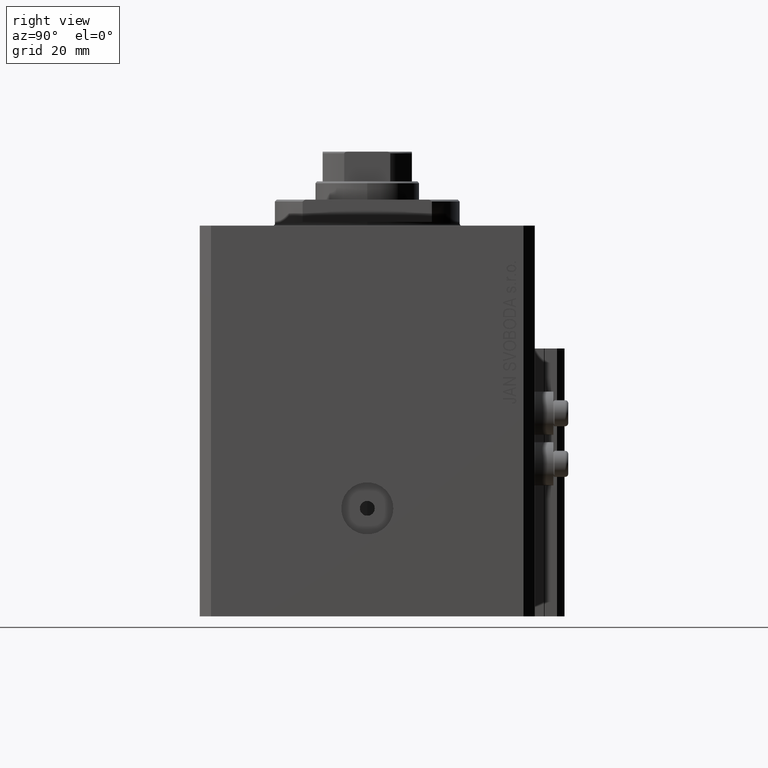
[diagram: clean part render]
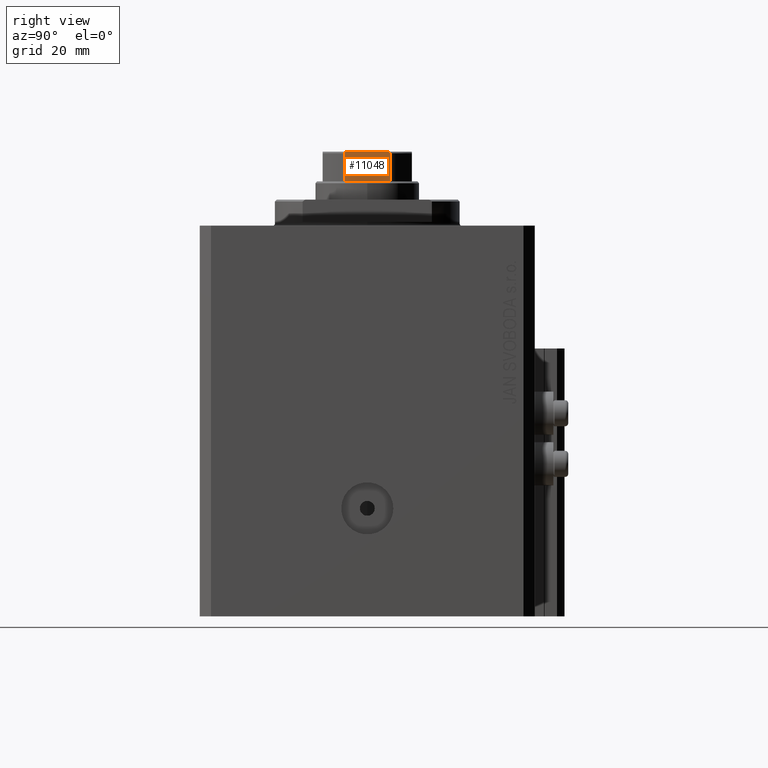
[diagram: same view with one face highlighted and labeled with its STEP entity id]
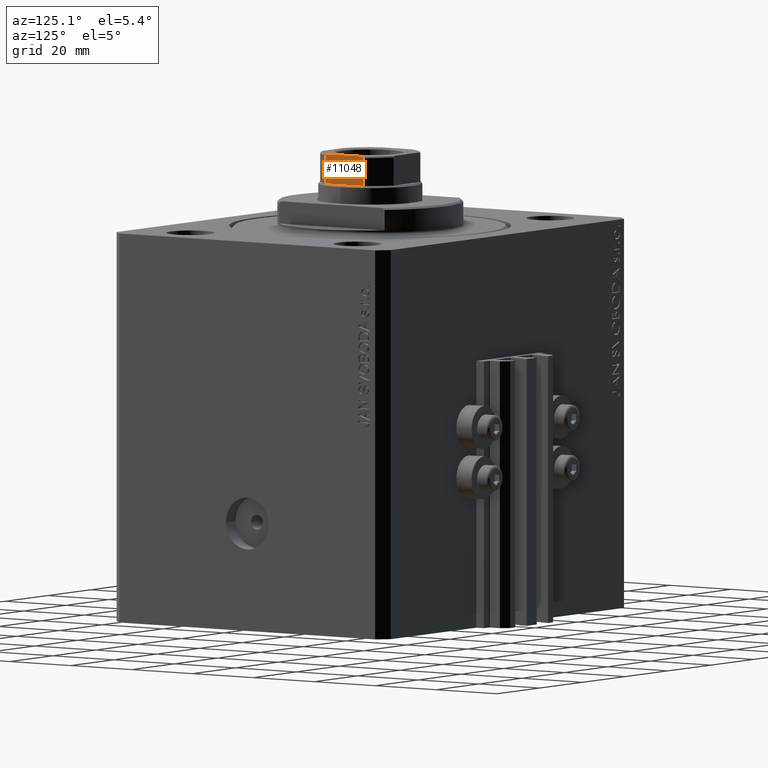
[diagram: same view with one face highlighted and labeled with its STEP entity id]
A machine part, right view. The second image highlights one B-rep face of the part: STEP entity #11048.
A second angle (auxiliary view) of the same face is appended — the face is thin or edge-on in the first view.
In plain terms, the highlighted planar face has unit normal (-1, -0, 0).
Its self-contained STEP definition (entity closure, byte-faithful):
#197 = CARTESIAN_POINT ( 'NONE',  ( 12.00000000000000355, 5.230795946637837979, 107.0000000000000284 ) ) ;
#238 = ORIENTED_EDGE ( 'NONE', *, *, #40157, .T. ) ;
#1071 = B_SPLINE_CURVE_WITH_KNOTS ( 'NONE', 3,
 ( #14066, #36596, #3797, #17670, #28688, #18389, #21732, #32997, #197, #17908 ),
 .UNSPECIFIED., .F., .F.,
 ( 4, 2, 2, 2, 4 ),
 ( 0.000000000000000000, 0.0001740189231935461184, 0.0003480378463870922368, 0.0006960756927741823053, 0.001392151385548353552 ),
 .UNSPECIFIED. ) ;
#1911 = CARTESIAN_POINT ( 'NONE',  ( 12.00000000000000000, 12.00000000000000000, 107.0000000000000142 ) ) ;
#2207 = DIRECTION ( 'NONE',  ( -1.445602896647339163E-16, 1.000000000000000000, -0.000000000000000000 ) ) ;
#2998 = CARTESIAN_POINT ( 'NONE',  ( 12.00000000000000178, -4.999999999999990230, 107.0000000000000142 ) ) ;
#3135 = ORIENTED_EDGE ( 'NONE', *, *, #29703, .T. ) ;
#3236 = CARTESIAN_POINT ( 'NONE',  ( 12.00000000000000355, -5.459934723612532181, 106.9794964115812377 ) ) ;
#3797 = CARTESIAN_POINT ( 'NONE',  ( 12.00000000000000000, 6.161088279078728469, 106.6146234191510445 ) ) ;
#3812 = VECTOR ( 'NONE', #2207, 1000.000000000000000 ) ;
#5259 = VECTOR ( 'NONE', #28309, 1000.000000000000000 ) ;
#7298 = CARTESIAN_POINT ( 'NONE',  ( 11.99999999999999822, -6.045866546018587862, 106.7461068616299258 ) ) ;
#7795 = CARTESIAN_POINT ( 'NONE',  ( 12.00000000000000000, 6.184658438426490434, -0.001000000000001000089 ) ) ;
#8158 = DIRECTION ( 'NONE',  ( -1.445602896647339163E-16, 1.000000000000000000, -0.000000000000000000 ) ) ;
#9088 = DIRECTION ( 'NONE',  ( 1.445602896647339163E-16, -1.000000000000000000, 0.000000000000000000 ) ) ;
#9158 = VECTOR ( 'NONE', #8158, 1000.000000000000000 ) ;
#9401 = LINE ( 'NONE', #13928, #5259 ) ;
#10822 = CARTESIAN_POINT ( 'NONE',  ( 12.00000000000000000, -6.184658438426490434, 99.00000000000001421 ) ) ;
#11048 = ADVANCED_FACE ( 'NONE', ( #24156 ), #13135, .F. ) ;
#11854 = VERTEX_POINT ( 'NONE', #39746 ) ;
#12037 = ORIENTED_EDGE ( 'NONE', *, *, #30627, .F. ) ;
#12221 = CARTESIAN_POINT ( 'NONE',  ( 12.00000000000000000, 6.184658438426490434, 99.00000000000001421 ) ) ;
#13135 = PLANE ( 'NONE',  #18940 ) ;
#13928 = CARTESIAN_POINT ( 'NONE',  ( 12.00000000000000000, -6.184658438426490434, -0.001000000000001000089 ) ) ;
#13988 = CARTESIAN_POINT ( 'NONE',  ( 12.00000000000000178, -5.230809753656810557, 107.0000000000000426 ) ) ;
#14066 = CARTESIAN_POINT ( 'NONE',  ( 12.00000000000000000, 6.184658438426490434, 106.5000000000000142 ) ) ;
#14230 = CARTESIAN_POINT ( 'NONE',  ( 12.00000000000000533, -6.160856115322533633, 106.6149782197478828 ) ) ;
#14513 = EDGE_CURVE ( 'NONE', #15439, #45030, #9401, .T. ) ;
#15207 = DIRECTION ( 'NONE',  ( -0.000000000000000000, -0.000000000000000000, 1.000000000000000000 ) ) ;
#15439 = VERTEX_POINT ( 'NONE', #10822 ) ;
#16888 = EDGE_CURVE ( 'NONE', #11854, #25859, #1071, .T. ) ;
#17670 = CARTESIAN_POINT ( 'NONE',  ( 11.99999999999999822, 6.091003570118822097, 106.7080862465981426 ) ) ;
#17908 = CARTESIAN_POINT ( 'NONE',  ( 12.00000000000000178, 4.999999999999994671, 107.0000000000000142 ) ) ;
#18389 = CARTESIAN_POINT ( 'NONE',  ( 11.99999999999999822, 5.900889097622409096, 106.8429613869932524 ) ) ;
#18940 = AXIS2_PLACEMENT_3D ( 'NONE', #1911, #27751, #9088 ) ;
#21732 = CARTESIAN_POINT ( 'NONE',  ( 12.00000000000000000, 5.792513940493496882, 106.8846382036009146 ) ) ;
#21893 = CARTESIAN_POINT ( 'NONE',  ( 12.00000000000000533, -6.184658438426488658, 106.5589821493407499 ) ) ;
#22880 = VECTOR ( 'NONE', #15207, 1000.000000000000000 ) ;
#22934 = ORIENTED_EDGE ( 'NONE', *, *, #16888, .T. ) ;
#23630 = ORIENTED_EDGE ( 'NONE', *, *, #14513, .F. ) ;
#24156 = FACE_OUTER_BOUND ( 'NONE', #37030, .T. ) ;
#24822 = CARTESIAN_POINT ( 'NONE',  ( 12.00000000000000000, -6.184658438426490434, 106.5000000000000142 ) ) ;
#24905 = ORIENTED_EDGE ( 'NONE', *, *, #28027, .T. ) ;
#25006 = CARTESIAN_POINT ( 'NONE',  ( 12.00000000000000000, -6.184658438426490434, 106.5000000000000142 ) ) ;
#25859 = VERTEX_POINT ( 'NONE', #33597 ) ;
#26121 = LINE ( 'NONE', #40741, #9158 ) ;
#27588 = CARTESIAN_POINT ( 'NONE',  ( 12.00000000000000000, 12.00000000000000000, 107.0000000000000142 ) ) ;
#27751 = DIRECTION ( 'NONE',  ( -1.000000000000000000, -1.445602896647339163E-16, 0.000000000000000000 ) ) ;
#28027 = EDGE_CURVE ( 'NONE', #38026, #11854, #29825, .T. ) ;
#28309 = DIRECTION ( 'NONE',  ( -0.000000000000000000, -0.000000000000000000, 1.000000000000000000 ) ) ;
#28688 = CARTESIAN_POINT ( 'NONE',  ( 12.00000000000000533, 6.046414714222230202, 106.7457872300293218 ) ) ;
#29703 = EDGE_CURVE ( 'NONE', #15439, #38026, #26121, .T. ) ;
#29825 = LINE ( 'NONE', #7795, #22880 ) ;
#30627 = EDGE_CURVE ( 'NONE', #45329, #25859, #39721, .T. ) ;
#32997 = CARTESIAN_POINT ( 'NONE',  ( 12.00000000000000178, 5.458892612163319669, 106.9796099716497935 ) ) ;
#33597 = CARTESIAN_POINT ( 'NONE',  ( 12.00000000000000178, 4.999999999999994671, 107.0000000000000142 ) ) ;
#36596 = CARTESIAN_POINT ( 'NONE',  ( 12.00000000000000355, 6.184658438426493099, 106.5589344020393980 ) ) ;
#37030 = EDGE_LOOP ( 'NONE', ( #12037, #238, #23630, #3135, #24905, #22934 ) ) ;
#37230 = CARTESIAN_POINT ( 'NONE',  ( 12.00000000000000178, -4.999999999999990230, 107.0000000000000142 ) ) ;
#38026 = VERTEX_POINT ( 'NONE', #12221 ) ;
#39721 = LINE ( 'NONE', #27588, #3812 ) ;
#39746 = CARTESIAN_POINT ( 'NONE',  ( 12.00000000000000000, 6.184658438426490434, 106.5000000000000142 ) ) ;
#40157 = EDGE_CURVE ( 'NONE', #45329, #45030, #46289, .T. ) ;
#40741 = CARTESIAN_POINT ( 'NONE',  ( 12.00000000000000000, 12.00000000000000000, 99.00000000000000000 ) ) ;
#43231 = CARTESIAN_POINT ( 'NONE',  ( 12.00000000000000355, -5.793822051191353850, 106.8841735219943843 ) ) ;
#43704 = CARTESIAN_POINT ( 'NONE',  ( 12.00000000000000355, -5.903192932991093045, 106.8415152347680390 ) ) ;
#44180 = CARTESIAN_POINT ( 'NONE',  ( 12.00000000000000355, -6.091027642353955329, 106.7080088155617261 ) ) ;
#45030 = VERTEX_POINT ( 'NONE', #24822 ) ;
#45329 = VERTEX_POINT ( 'NONE', #37230 ) ;
#46289 = B_SPLINE_CURVE_WITH_KNOTS ( 'NONE', 3,
 ( #2998, #13988, #3236, #43231, #43704, #7298, #44180, #14230, #21893, #25006 ),
 .UNSPECIFIED., .F., .F.,
 ( 4, 2, 2, 2, 4 ),
 ( 8.673617379884035472E-19, 0.0006877128613558527916, 0.001031569292033774309, 0.001203497507372736260, 0.001375425722711697994 ),
 .UNSPECIFIED. ) ;